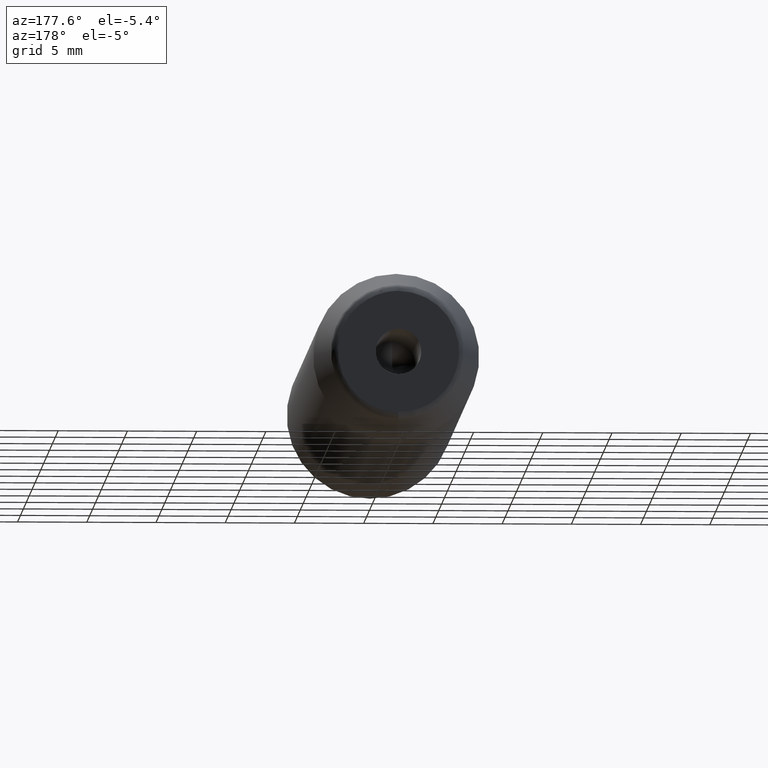
[diagram: clean part render]
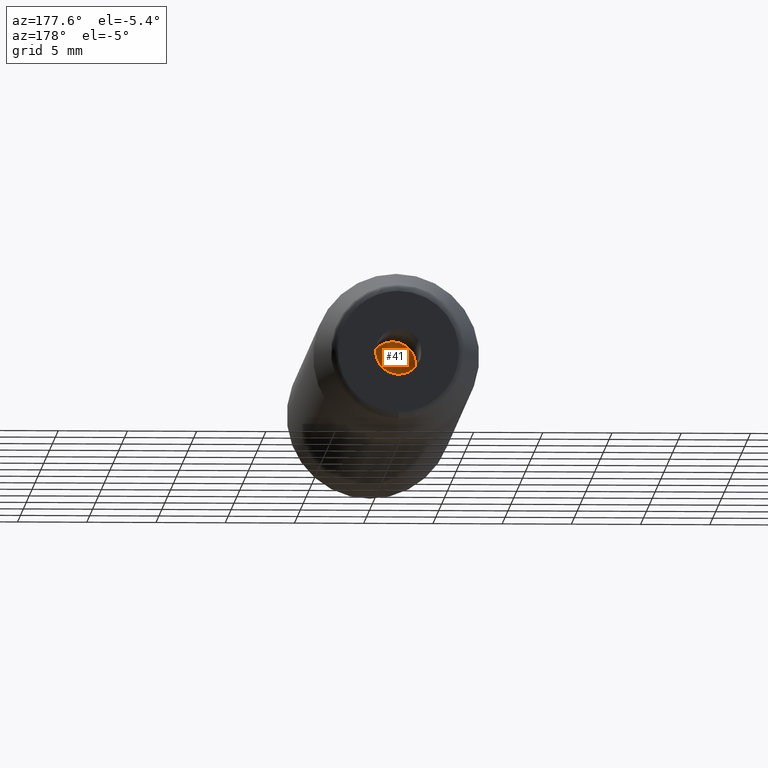
[diagram: same view with one face highlighted and labeled with its STEP entity id]
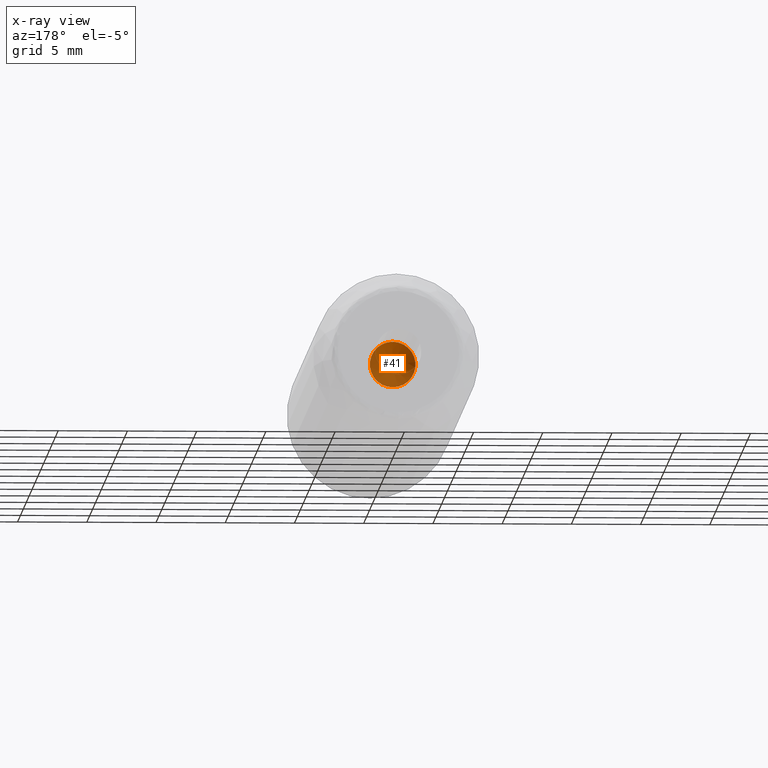
[diagram: x-ray of the same camera — body ghosted, the highlighted face saturated]
A machine part, auxiliary view. The second image highlights one B-rep face of the part: STEP entity #41.
The next image is the same camera in x-ray: the body ghosted, the highlighted face saturated — about 40% of this face is hidden behind the body in this view.
In plain terms, the highlighted conical surface has half-angle 59 deg.
Its self-contained STEP definition (entity closure, byte-faithful):
#18 = DIRECTION ( 'NONE',  ( -0.000000000000000000, 1.000000000000000000, 0.000000000000000000 ) ) ;
#41 = ADVANCED_FACE ( 'NONE', ( #64 ), #272, .F. ) ;
#64 = FACE_OUTER_BOUND ( 'NONE', #82, .T. ) ;
#69 = DIRECTION ( 'NONE',  ( 0.000000000000000000, 0.000000000000000000, 1.000000000000000000 ) ) ;
#82 = EDGE_LOOP ( 'NONE', ( #248 ) ) ;
#101 = CARTESIAN_POINT ( 'NONE',  ( 0.000000000000000000, 39.90000000000000568, 1.649999999999998579 ) ) ;
#111 = CARTESIAN_POINT ( 'NONE',  ( 0.000000000000000000, 39.90000000000000568, 0.000000000000000000 ) ) ;
#138 = DIRECTION ( 'NONE',  ( 0.000000000000000000, 0.000000000000000000, 1.000000000000000000 ) ) ;
#204 = AXIS2_PLACEMENT_3D ( 'NONE', #294, #18, #69 ) ;
#218 = VERTEX_POINT ( 'NONE', #101 ) ;
#248 = ORIENTED_EDGE ( 'NONE', *, *, #302, .T. ) ;
#262 = CIRCLE ( 'NONE', #293, 1.649999999999998579 ) ;
#272 = CONICAL_SURFACE ( 'NONE', #204, 1.649999999870033207, 1.029744258665856727 ) ;
#276 = DIRECTION ( 'NONE',  ( 0.000000000000000000, 1.000000000000000000, 0.000000000000000000 ) ) ;
#293 = AXIS2_PLACEMENT_3D ( 'NONE', #111, #276, #138 ) ;
#294 = CARTESIAN_POINT ( 'NONE',  ( 0.000000000000000000, 39.89999999989777280, 0.000000000000000000 ) ) ;
#302 = EDGE_CURVE ( 'NONE', #218, #218, #262, .T. ) ;